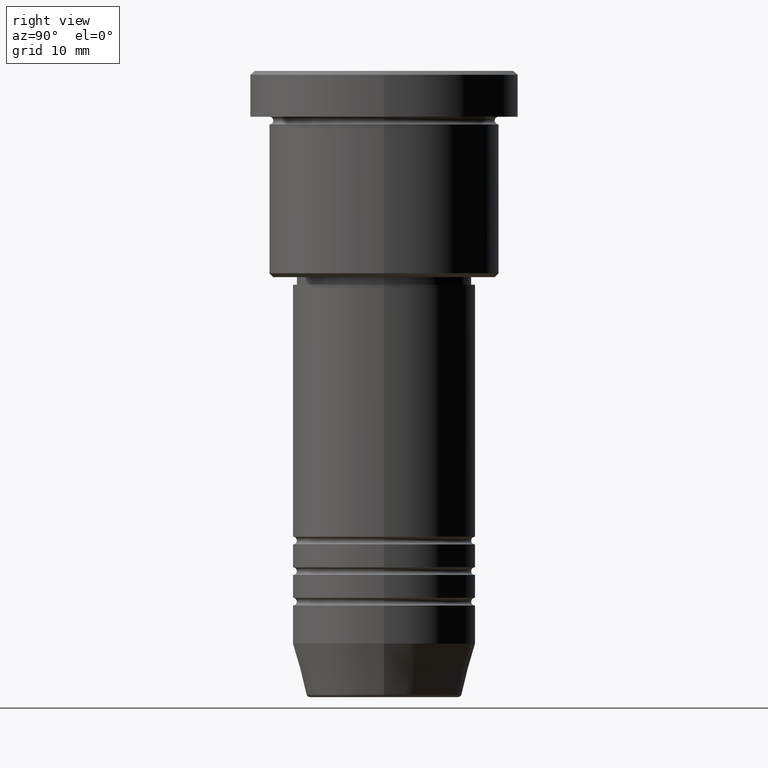
[diagram: clean part render]
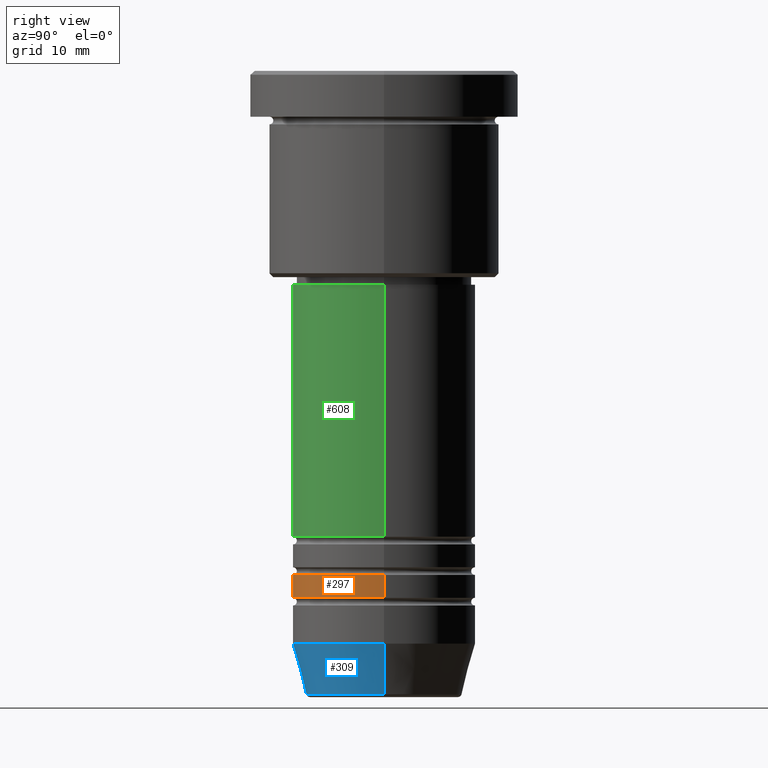
[diagram: same view with three faces highlighted in distinct colors, each labeled with its STEP entity id]
A machine part, right view with three faces highlighted in distinct colors.
Their STEP definitions:

[orange] entity #297 — the highlighted cylindrical surface (partial cylindrical patch) has radius 12 mm, axis along (-0, -0, 1).
#13 = CARTESIAN_POINT ( 'NONE',  ( 12.00000000000000000, 0.000000000000000000, -65.99999999999988631 ) ) ;
#35 = LINE ( 'NONE', #1042, #218 ) ;
#41 = DIRECTION ( 'NONE',  ( -0.000000000000000000, -0.000000000000000000, 1.000000000000000000 ) ) ;
#128 = DIRECTION ( 'NONE',  ( -0.000000000000000000, -0.000000000000000000, 1.000000000000000000 ) ) ;
#174 = CIRCLE ( 'NONE', #654, 12.00000000000000000 ) ;
#218 = VECTOR ( 'NONE', #41, 1000.000000000000000 ) ;
#221 = DIRECTION ( 'NONE',  ( -0.000000000000000000, -0.000000000000000000, 1.000000000000000000 ) ) ;
#225 = CARTESIAN_POINT ( 'NONE',  ( 0.000000000000000000, 0.000000000000000000, 0.000000000000000000 ) ) ;
#230 = CYLINDRICAL_SURFACE ( 'NONE', #858, 12.00000000000000000 ) ;
#235 = ORIENTED_EDGE ( 'NONE', *, *, #322, .F. ) ;
#262 = CARTESIAN_POINT ( 'NONE',  ( -12.00000000000000000, 1.469576158976823947E-15, -65.99999999999988631 ) ) ;
#297 = ADVANCED_FACE ( 'NONE', ( #740 ), #230, .T. ) ;
#322 = EDGE_CURVE ( 'NONE', #445, #1068, #931, .T. ) ;
#343 = CARTESIAN_POINT ( 'NONE',  ( -12.00000000000000000, 1.469576158976823947E-15, -68.99999999999988631 ) ) ;
#406 = ORIENTED_EDGE ( 'NONE', *, *, #772, .F. ) ;
#445 = VERTEX_POINT ( 'NONE', #343 ) ;
#484 = CARTESIAN_POINT ( 'NONE',  ( 0.000000000000000000, 0.000000000000000000, -68.99999999999988631 ) ) ;
#500 = DIRECTION ( 'NONE',  ( -0.000000000000000000, -0.000000000000000000, 1.000000000000000000 ) ) ;
#514 = VECTOR ( 'NONE', #500, 1000.000000000000000 ) ;
#643 = DIRECTION ( 'NONE',  ( 1.000000000000000000, 0.000000000000000000, 0.000000000000000000 ) ) ;
#654 = AXIS2_PLACEMENT_3D ( 'NONE', #733, #835, #643 ) ;
#658 = DIRECTION ( 'NONE',  ( 1.000000000000000000, 0.000000000000000000, 0.000000000000000000 ) ) ;
#675 = VERTEX_POINT ( 'NONE', #13 ) ;
#677 = VERTEX_POINT ( 'NONE', #705 ) ;
#705 = CARTESIAN_POINT ( 'NONE',  ( 12.00000000000000000, 0.000000000000000000, -68.99999999999988631 ) ) ;
#712 = ORIENTED_EDGE ( 'NONE', *, *, #1115, .T. ) ;
#733 = CARTESIAN_POINT ( 'NONE',  ( 0.000000000000000000, 0.000000000000000000, -65.99999999999988631 ) ) ;
#737 = DIRECTION ( 'NONE',  ( 1.000000000000000000, 0.000000000000000000, 0.000000000000000000 ) ) ;
#740 = FACE_OUTER_BOUND ( 'NONE', #787, .T. ) ;
#772 = EDGE_CURVE ( 'NONE', #1068, #675, #174, .T. ) ;
#787 = EDGE_LOOP ( 'NONE', ( #235, #1106, #712, #406 ) ) ;
#835 = DIRECTION ( 'NONE',  ( -0.000000000000000000, -0.000000000000000000, 1.000000000000000000 ) ) ;
#858 = AXIS2_PLACEMENT_3D ( 'NONE', #225, #128, #658 ) ;
#929 = EDGE_CURVE ( 'NONE', #445, #677, #1065, .T. ) ;
#931 = LINE ( 'NONE', #1119, #514 ) ;
#1025 = AXIS2_PLACEMENT_3D ( 'NONE', #484, #221, #737 ) ;
#1042 = CARTESIAN_POINT ( 'NONE',  ( 12.00000000000000000, 0.000000000000000000, 0.000000000000000000 ) ) ;
#1065 = CIRCLE ( 'NONE', #1025, 12.00000000000000000 ) ;
#1068 = VERTEX_POINT ( 'NONE', #262 ) ;
#1106 = ORIENTED_EDGE ( 'NONE', *, *, #929, .T. ) ;
#1115 = EDGE_CURVE ( 'NONE', #677, #675, #35, .T. ) ;
#1119 = CARTESIAN_POINT ( 'NONE',  ( -12.00000000000000000, 1.469576158976823947E-15, 0.000000000000000000 ) ) ;

[blue] entity #309 — the highlighted conical surface has half-angle 15 deg.
#10 = VERTEX_POINT ( 'NONE', #974 ) ;
#24 = CARTESIAN_POINT ( 'NONE',  ( 0.000000000000000000, 0.000000000000000000, -75.00000000000000000 ) ) ;
#33 = DIRECTION ( 'NONE',  ( 1.000000000000000000, 0.000000000000000000, 0.000000000000000000 ) ) ;
#61 = DIRECTION ( 'NONE',  ( 1.000000000000000000, 0.000000000000000000, 0.000000000000000000 ) ) ;
#64 = VECTOR ( 'NONE', #404, 1000.000000000000000 ) ;
#65 = AXIS2_PLACEMENT_3D ( 'NONE', #1143, #334, #61 ) ;
#80 = DIRECTION ( 'NONE',  ( -0.000000000000000000, -0.000000000000000000, 1.000000000000000000 ) ) ;
#101 = LINE ( 'NONE', #1014, #247 ) ;
#117 = CARTESIAN_POINT ( 'NONE',  ( -12.00000000000000000, 1.469576158976823947E-15, -75.00000000000000000 ) ) ;
#165 = ORIENTED_EDGE ( 'NONE', *, *, #489, .T. ) ;
#166 = EDGE_CURVE ( 'NONE', #702, #698, #101, .T. ) ;
#222 = EDGE_CURVE ( 'NONE', #698, #539, #362, .T. ) ;
#247 = VECTOR ( 'NONE', #991, 1000.000000000000000 ) ;
#309 = ADVANCED_FACE ( 'NONE', ( #397 ), #917, .T. ) ;
#334 = DIRECTION ( 'NONE',  ( -0.000000000000000000, -0.000000000000000000, 1.000000000000000000 ) ) ;
#362 = CIRCLE ( 'NONE', #742, 12.00000000000000000 ) ;
#397 = FACE_OUTER_BOUND ( 'NONE', #1048, .T. ) ;
#404 = DIRECTION ( 'NONE',  ( 0.2588190451025213501, 0.000000000000000000, 0.9659258262890680902 ) ) ;
#413 = EDGE_CURVE ( 'NONE', #10, #539, #571, .T. ) ;
#425 = CARTESIAN_POINT ( 'NONE',  ( 12.00000000000000000, 0.000000000000000000, -75.00000000000000000 ) ) ;
#479 = ORIENTED_EDGE ( 'NONE', *, *, #222, .F. ) ;
#489 = EDGE_CURVE ( 'NONE', #702, #10, #1003, .T. ) ;
#539 = VERTEX_POINT ( 'NONE', #425 ) ;
#571 = LINE ( 'NONE', #928, #64 ) ;
#674 = ORIENTED_EDGE ( 'NONE', *, *, #166, .F. ) ;
#698 = VERTEX_POINT ( 'NONE', #117 ) ;
#702 = VERTEX_POINT ( 'NONE', #926 ) ;
#742 = AXIS2_PLACEMENT_3D ( 'NONE', #889, #80, #1179 ) ;
#889 = CARTESIAN_POINT ( 'NONE',  ( 0.000000000000000000, 0.000000000000000000, -75.00000000000000000 ) ) ;
#917 = CONICAL_SURFACE ( 'NONE', #1022, 12.00000000000000000, 0.2617993877991500740 ) ;
#926 = CARTESIAN_POINT ( 'NONE',  ( -10.22365507213718949, 1.360806402472382744E-15, -81.62940952255125637 ) ) ;
#928 = CARTESIAN_POINT ( 'NONE',  ( 12.00000000000000000, 0.000000000000000000, -75.00000000000000000 ) ) ;
#973 = ORIENTED_EDGE ( 'NONE', *, *, #413, .T. ) ;
#974 = CARTESIAN_POINT ( 'NONE',  ( 10.22365507213718949, 0.000000000000000000, -81.62940952255125637 ) ) ;
#991 = DIRECTION ( 'NONE',  ( -0.2588190451025213501, 3.169619151431772337E-17, 0.9659258262890680902 ) ) ;
#1003 = CIRCLE ( 'NONE', #65, 10.22365507213718949 ) ;
#1014 = CARTESIAN_POINT ( 'NONE',  ( -12.00000000000000000, 1.469576158976823947E-15, -75.00000000000000000 ) ) ;
#1022 = AXIS2_PLACEMENT_3D ( 'NONE', #24, #1039, #33 ) ;
#1039 = DIRECTION ( 'NONE',  ( -0.000000000000000000, -0.000000000000000000, 1.000000000000000000 ) ) ;
#1048 = EDGE_LOOP ( 'NONE', ( #674, #165, #973, #479 ) ) ;
#1143 = CARTESIAN_POINT ( 'NONE',  ( 0.000000000000000000, 0.000000000000000000, -81.62940952255125637 ) ) ;
#1179 = DIRECTION ( 'NONE',  ( 1.000000000000000000, 0.000000000000000000, 0.000000000000000000 ) ) ;

[green] entity #608 — the highlighted cylindrical surface (partial cylindrical patch) has radius 12 mm, axis along (-0, -0, 1).
#74 = LINE ( 'NONE', #444, #133 ) ;
#116 = EDGE_CURVE ( 'NONE', #604, #976, #74, .T. ) ;
#133 = VECTOR ( 'NONE', #424, 1000.000000000000000 ) ;
#160 = ORIENTED_EDGE ( 'NONE', *, *, #581, .F. ) ;
#163 = EDGE_CURVE ( 'NONE', #224, #682, #251, .T. ) ;
#212 = CIRCLE ( 'NONE', #270, 12.00000000000000000 ) ;
#220 = DIRECTION ( 'NONE',  ( -0.000000000000000000, -0.000000000000000000, 1.000000000000000000 ) ) ;
#224 = VERTEX_POINT ( 'NONE', #1170 ) ;
#251 = LINE ( 'NONE', #556, #741 ) ;
#270 = AXIS2_PLACEMENT_3D ( 'NONE', #673, #220, #836 ) ;
#319 = ORIENTED_EDGE ( 'NONE', *, *, #116, .T. ) ;
#369 = FACE_OUTER_BOUND ( 'NONE', #972, .T. ) ;
#398 = EDGE_CURVE ( 'NONE', #224, #604, #212, .T. ) ;
#424 = DIRECTION ( 'NONE',  ( -0.000000000000000000, -0.000000000000000000, 1.000000000000000000 ) ) ;
#444 = CARTESIAN_POINT ( 'NONE',  ( 12.00000000000000000, 0.000000000000000000, 0.000000000000000000 ) ) ;
#455 = CARTESIAN_POINT ( 'NONE',  ( -12.00000000000000000, 1.469576158976823947E-15, -28.00000000000001776 ) ) ;
#475 = ORIENTED_EDGE ( 'NONE', *, *, #398, .T. ) ;
#515 = AXIS2_PLACEMENT_3D ( 'NONE', #1004, #887, #554 ) ;
#554 = DIRECTION ( 'NONE',  ( 1.000000000000000000, 0.000000000000000000, 0.000000000000000000 ) ) ;
#556 = CARTESIAN_POINT ( 'NONE',  ( -12.00000000000000000, 1.469576158976823947E-15, 0.000000000000000000 ) ) ;
#581 = EDGE_CURVE ( 'NONE', #682, #976, #822, .T. ) ;
#598 = ORIENTED_EDGE ( 'NONE', *, *, #163, .F. ) ;
#602 = AXIS2_PLACEMENT_3D ( 'NONE', #794, #1183, #997 ) ;
#604 = VERTEX_POINT ( 'NONE', #806 ) ;
#608 = ADVANCED_FACE ( 'NONE', ( #369 ), #894, .T. ) ;
#673 = CARTESIAN_POINT ( 'NONE',  ( 0.000000000000000000, 0.000000000000000000, -60.99999999999988631 ) ) ;
#682 = VERTEX_POINT ( 'NONE', #455 ) ;
#741 = VECTOR ( 'NONE', #1103, 1000.000000000000000 ) ;
#794 = CARTESIAN_POINT ( 'NONE',  ( 0.000000000000000000, 0.000000000000000000, 0.000000000000000000 ) ) ;
#806 = CARTESIAN_POINT ( 'NONE',  ( 12.00000000000000000, 0.000000000000000000, -60.99999999999988631 ) ) ;
#822 = CIRCLE ( 'NONE', #515, 12.00000000000000000 ) ;
#836 = DIRECTION ( 'NONE',  ( 1.000000000000000000, 0.000000000000000000, 0.000000000000000000 ) ) ;
#887 = DIRECTION ( 'NONE',  ( -0.000000000000000000, -0.000000000000000000, 1.000000000000000000 ) ) ;
#894 = CYLINDRICAL_SURFACE ( 'NONE', #602, 12.00000000000000000 ) ;
#972 = EDGE_LOOP ( 'NONE', ( #598, #475, #319, #160 ) ) ;
#976 = VERTEX_POINT ( 'NONE', #1099 ) ;
#997 = DIRECTION ( 'NONE',  ( 1.000000000000000000, 0.000000000000000000, 0.000000000000000000 ) ) ;
#1004 = CARTESIAN_POINT ( 'NONE',  ( 0.000000000000000000, 0.000000000000000000, -28.00000000000001776 ) ) ;
#1099 = CARTESIAN_POINT ( 'NONE',  ( 12.00000000000000000, 0.000000000000000000, -28.00000000000001776 ) ) ;
#1103 = DIRECTION ( 'NONE',  ( -0.000000000000000000, -0.000000000000000000, 1.000000000000000000 ) ) ;
#1170 = CARTESIAN_POINT ( 'NONE',  ( -12.00000000000000000, 1.469576158976823947E-15, -60.99999999999988631 ) ) ;
#1183 = DIRECTION ( 'NONE',  ( -0.000000000000000000, -0.000000000000000000, 1.000000000000000000 ) ) ;